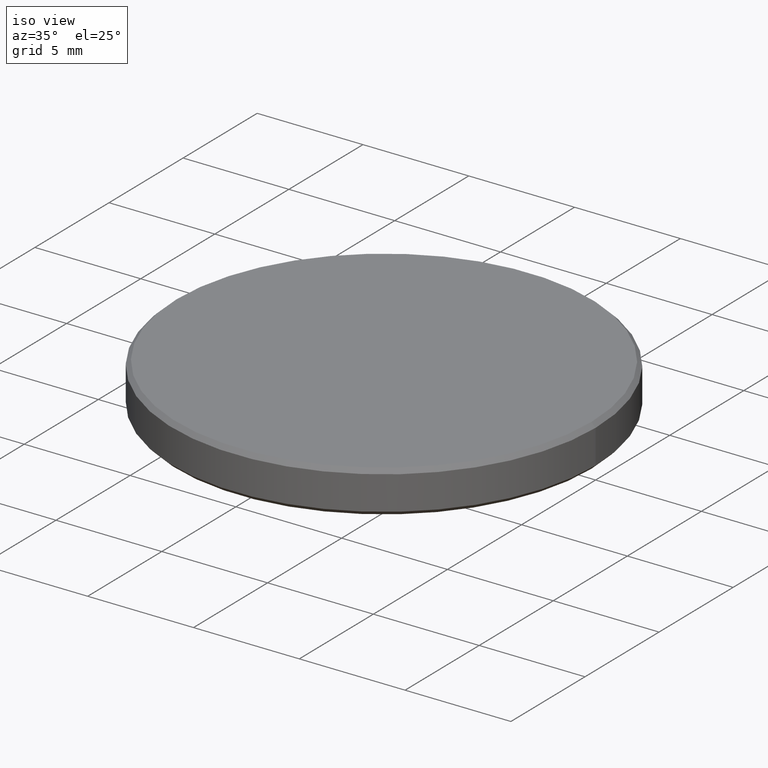
[diagram: clean part render]
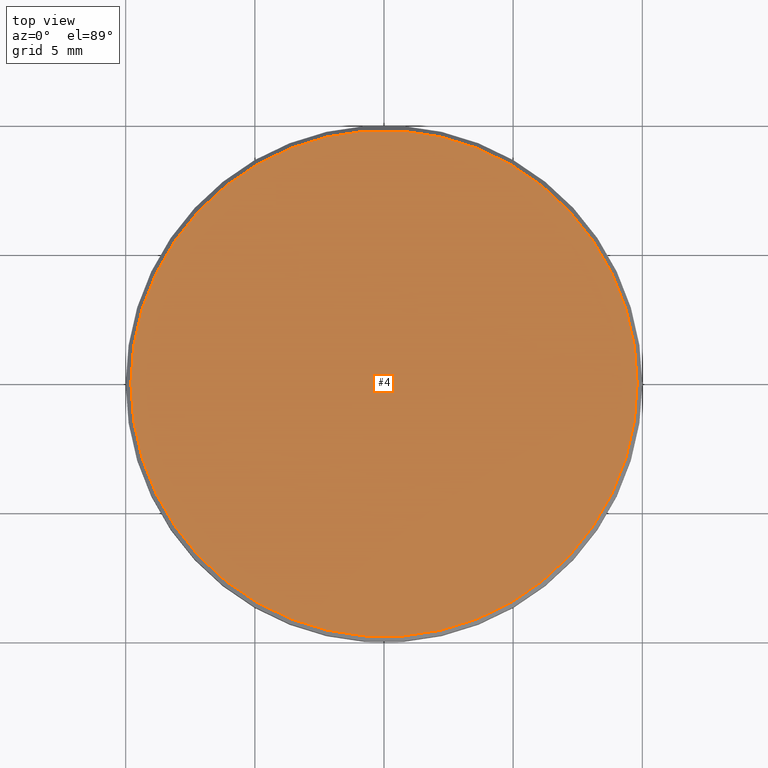
[diagram: tour spotlight — one face highlighted and labeled with its STEP entity id]
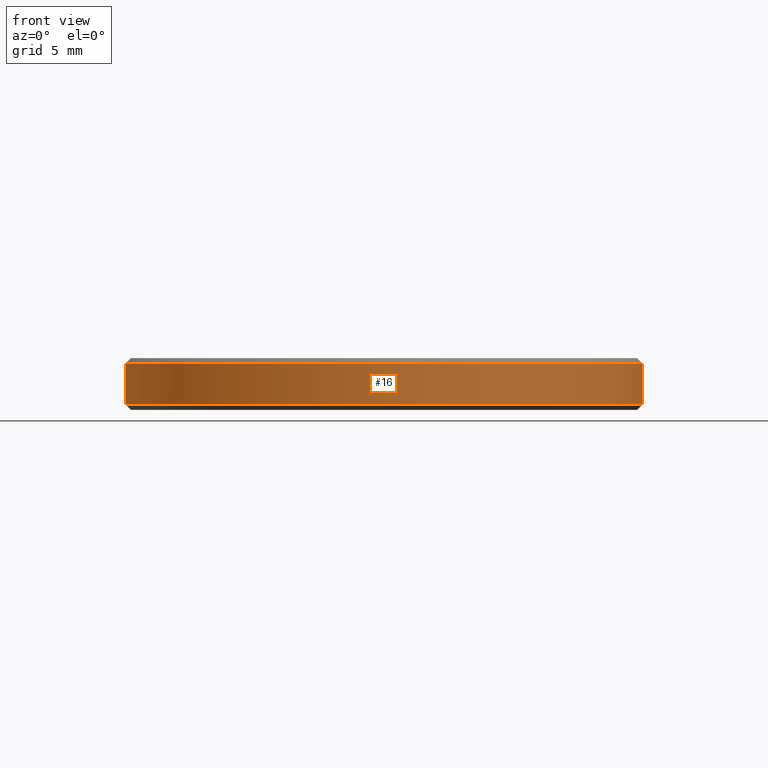
[diagram: tour spotlight — one face highlighted and labeled with its STEP entity id]
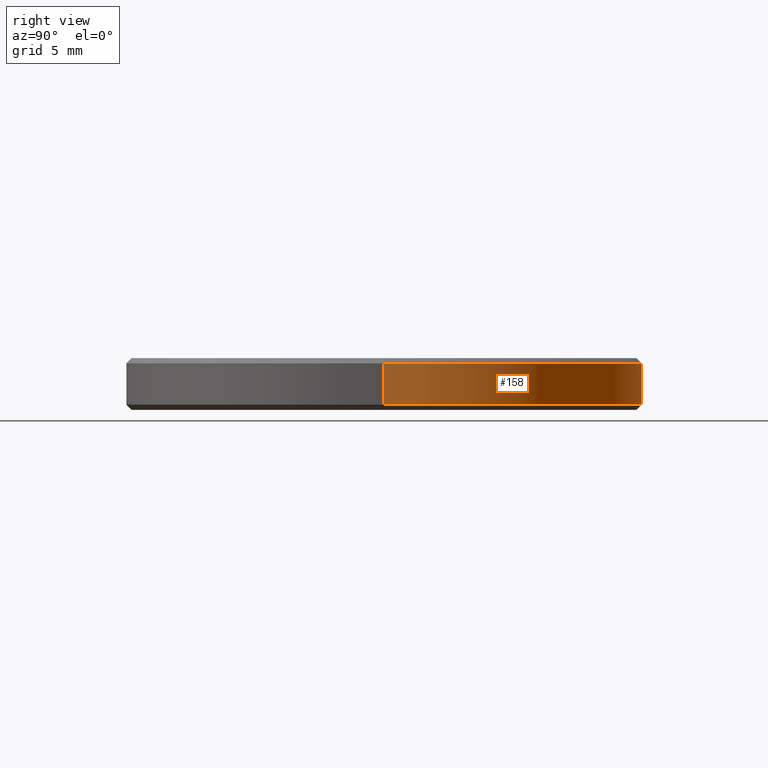
[diagram: tour spotlight — one face highlighted and labeled with its STEP entity id]
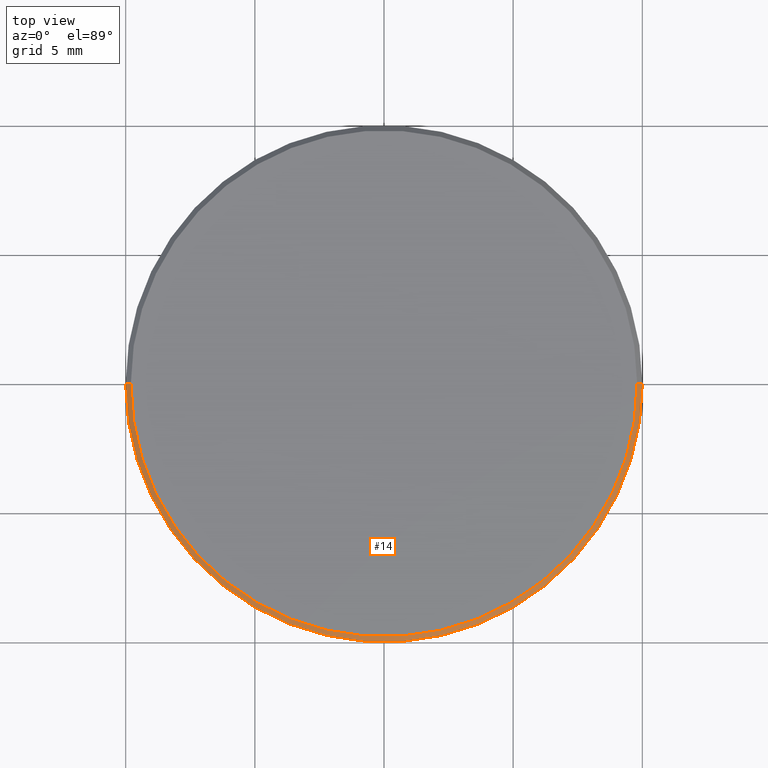
[diagram: tour spotlight — one face highlighted and labeled with its STEP entity id]
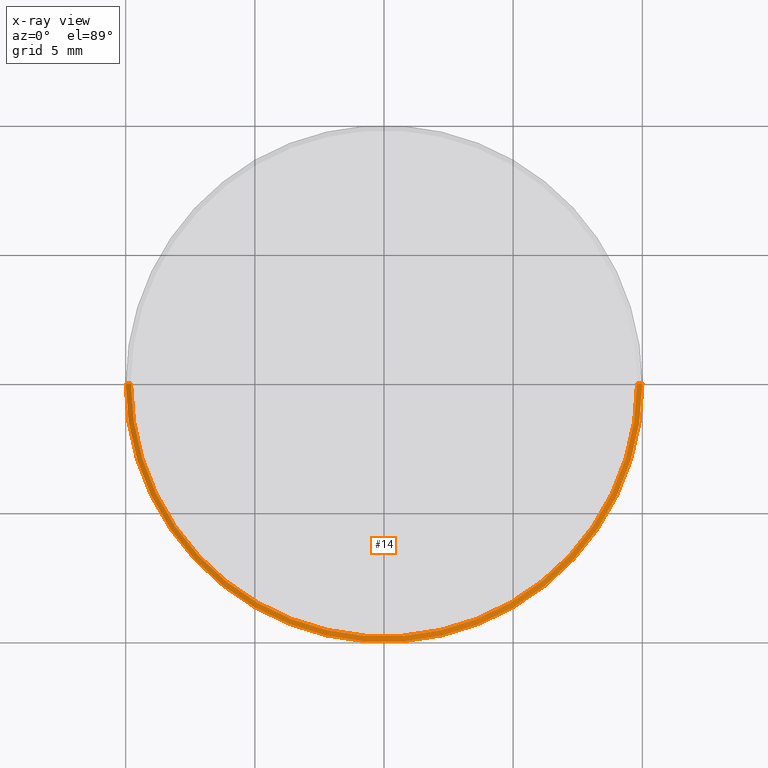
[diagram: x-ray of the same camera — body ghosted, this tour face saturated]
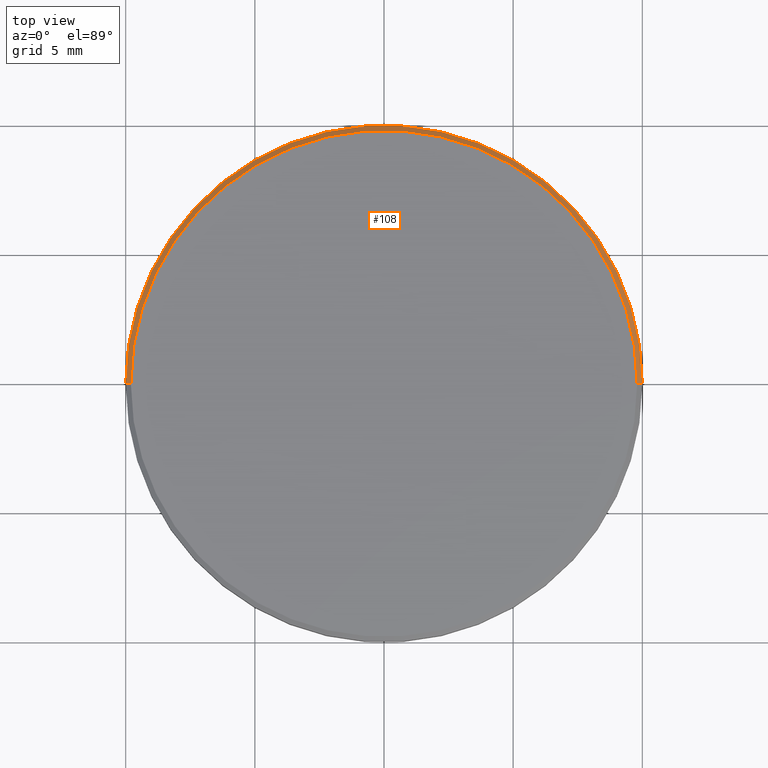
[diagram: tour spotlight — one face highlighted and labeled with its STEP entity id]
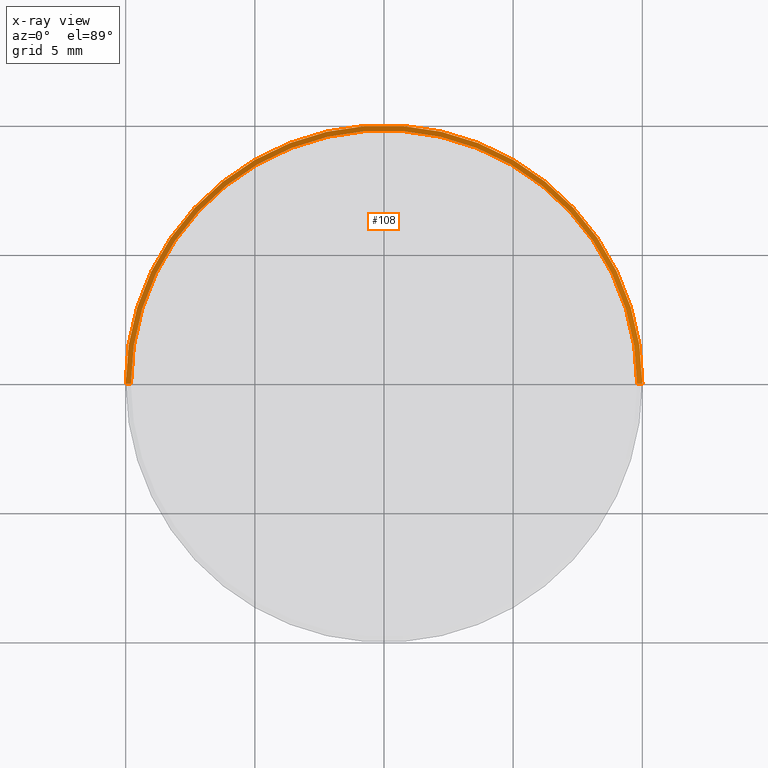
[diagram: x-ray of the same camera — body ghosted, this tour face saturated]
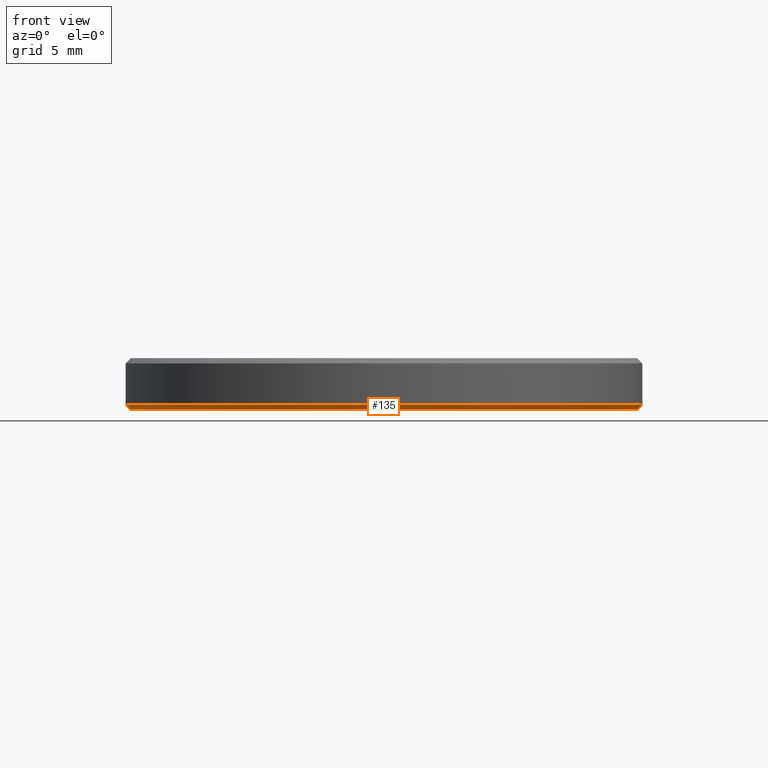
[diagram: tour spotlight — one face highlighted and labeled with its STEP entity id]
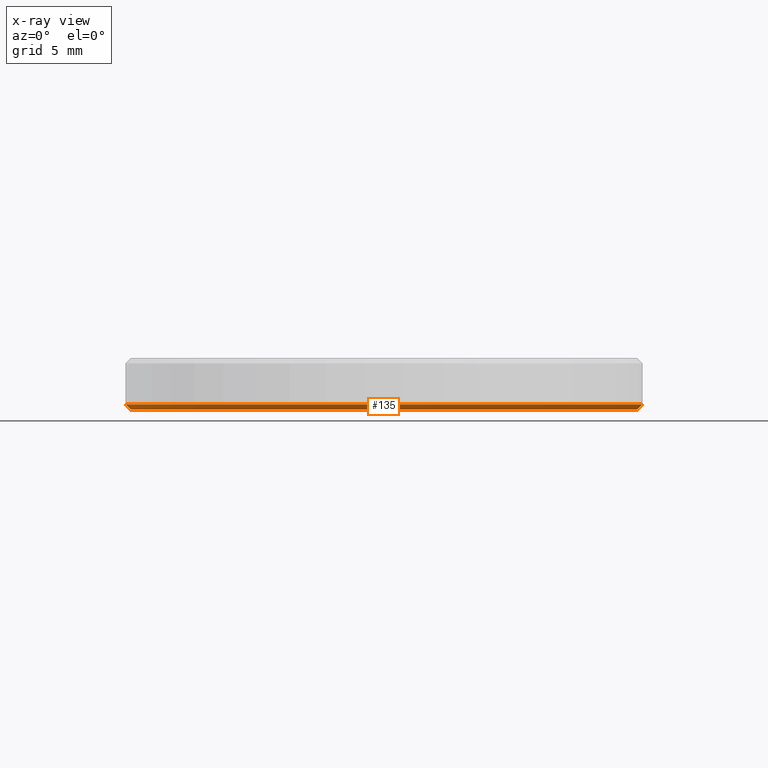
[diagram: x-ray of the same camera — body ghosted, this tour face saturated]
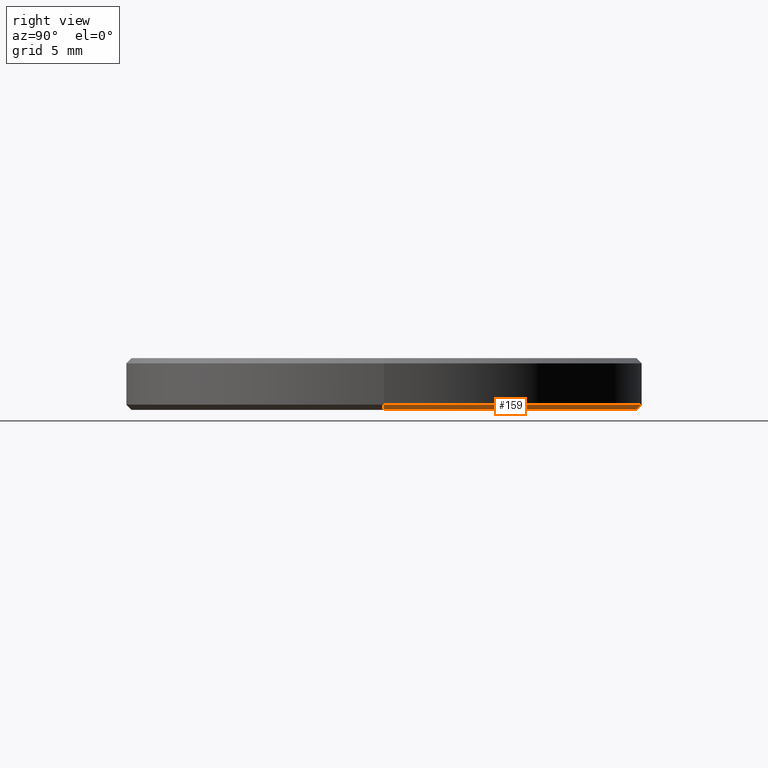
[diagram: tour spotlight — one face highlighted and labeled with its STEP entity id]
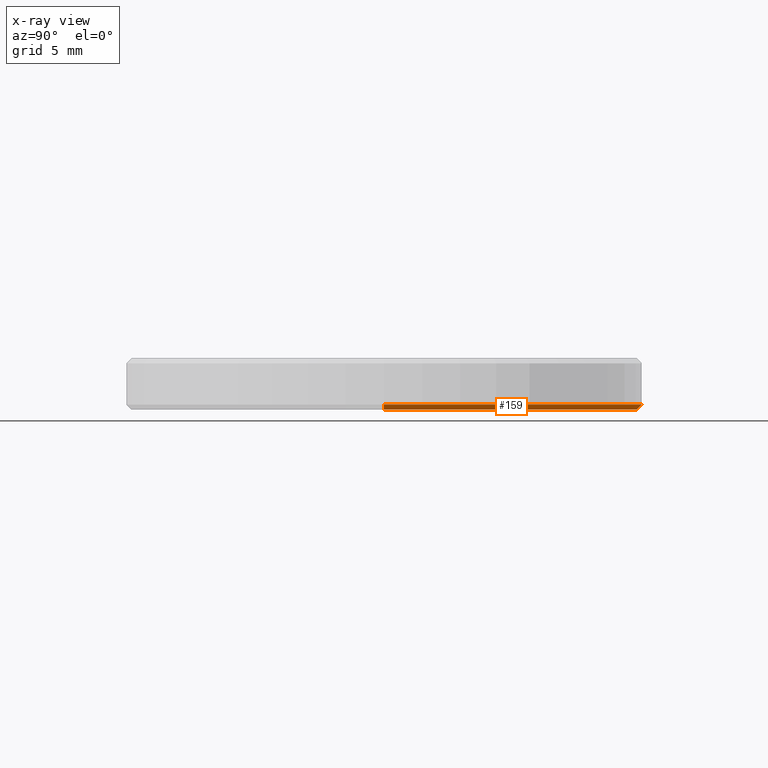
[diagram: x-ray of the same camera — body ghosted, this tour face saturated]
A machine part: a face-by-face anatomy tour. The part has 8 B-rep faces; the first image is the clean iso view, then the 7 largest visible faces are spotlighted one at a time (largest first), each with its STEP entity span.

Face 1 — top view, entity #4. In plain terms, the highlighted planar face has unit normal (0, 0, 1).
Definition (entity closure, byte-faithful):
#4 = ADVANCED_FACE ( 'NONE', ( #130 ), #52, .T. ) ;
#8 = AXIS2_PLACEMENT_3D ( 'NONE', #229, #74, #138 ) ;
#10 = CARTESIAN_POINT ( 'NONE',  ( 0.000000000000000000, 0.000000000000000000, 2.000000000000000000 ) ) ;
#11 = CARTESIAN_POINT ( 'NONE',  ( 0.000000000000000000, 0.000000000000000000, 2.000000000000000000 ) ) ;
#45 = DIRECTION ( 'NONE',  ( 0.000000000000000000, 0.000000000000000000, 1.000000000000000000 ) ) ;
#51 = CIRCLE ( 'NONE', #86, 9.799999999999993605 ) ;
#52 = PLANE ( 'NONE',  #123 ) ;
#68 = EDGE_CURVE ( 'NONE', #189, #92, #169, .T. ) ;
#74 = DIRECTION ( 'NONE',  ( 0.000000000000000000, 0.000000000000000000, 1.000000000000000000 ) ) ;
#86 = AXIS2_PLACEMENT_3D ( 'NONE', #11, #93, #141 ) ;
#90 = EDGE_LOOP ( 'NONE', ( #218, #182 ) ) ;
#92 = VERTEX_POINT ( 'NONE', #96 ) ;
#93 = DIRECTION ( 'NONE',  ( 0.000000000000000000, 0.000000000000000000, 1.000000000000000000 ) ) ;
#96 = CARTESIAN_POINT ( 'NONE',  ( 9.799999999999993605, 1.212400331155879111E-15, 2.000000000000000000 ) ) ;
#123 = AXIS2_PLACEMENT_3D ( 'NONE', #10, #45, #171 ) ;
#124 = CARTESIAN_POINT ( 'NONE',  ( -9.799999999999993605, 0.000000000000000000, 2.000000000000000000 ) ) ;
#130 = FACE_OUTER_BOUND ( 'NONE', #90, .T. ) ;
#138 = DIRECTION ( 'NONE',  ( 1.000000000000000000, 0.000000000000000000, 0.000000000000000000 ) ) ;
#141 = DIRECTION ( 'NONE',  ( 1.000000000000000000, 0.000000000000000000, 0.000000000000000000 ) ) ;
#169 = CIRCLE ( 'NONE', #8, 9.799999999999993605 ) ;
#171 = DIRECTION ( 'NONE',  ( 1.000000000000000000, 0.000000000000000000, -0.000000000000000000 ) ) ;
#182 = ORIENTED_EDGE ( 'NONE', *, *, #183, .T. ) ;
#183 = EDGE_CURVE ( 'NONE', #92, #189, #51, .T. ) ;
#189 = VERTEX_POINT ( 'NONE', #124 ) ;
#218 = ORIENTED_EDGE ( 'NONE', *, *, #68, .T. ) ;
#229 = CARTESIAN_POINT ( 'NONE',  ( 0.000000000000000000, 0.000000000000000000, 2.000000000000000000 ) ) ;

Face 2 — front view, entity #16. In plain terms, the highlighted cylindrical surface (partial cylindrical patch) has radius 10 mm, axis along (-0, -0, -1).
Definition (entity closure, byte-faithful):
#5 = LINE ( 'NONE', #6, #154 ) ;
#6 = CARTESIAN_POINT ( 'NONE',  ( -10.00000000000000000, 0.000000000000000000, 2.000000000000000000 ) ) ;
#7 = EDGE_CURVE ( 'NONE', #88, #133, #5, .T. ) ;
#12 = DIRECTION ( 'NONE',  ( 0.000000000000000000, 0.000000000000000000, -1.000000000000000000 ) ) ;
#16 = ADVANCED_FACE ( 'NONE', ( #103 ), #122, .T. ) ;
#24 = VECTOR ( 'NONE', #30, 1000.000000000000000 ) ;
#28 = LINE ( 'NONE', #71, #24 ) ;
#30 = DIRECTION ( 'NONE',  ( -0.000000000000000000, -0.000000000000000000, -1.000000000000000000 ) ) ;
#38 = ORIENTED_EDGE ( 'NONE', *, *, #7, .T. ) ;
#49 = ORIENTED_EDGE ( 'NONE', *, *, #191, .T. ) ;
#53 = CARTESIAN_POINT ( 'NONE',  ( 0.000000000000000000, 0.000000000000000000, 1.799999999999992495 ) ) ;
#59 = VERTEX_POINT ( 'NONE', #75 ) ;
#61 = EDGE_CURVE ( 'NONE', #115, #59, #28, .T. ) ;
#71 = CARTESIAN_POINT ( 'NONE',  ( 10.00000000000000000, 1.224646799147353256E-15, 2.000000000000000000 ) ) ;
#75 = CARTESIAN_POINT ( 'NONE',  ( 10.00000000000000000, 1.224646799147353256E-15, 0.2000000000000005107 ) ) ;
#76 = CIRCLE ( 'NONE', #118, 10.00000000000000000 ) ;
#78 = EDGE_CURVE ( 'NONE', #115, #88, #76, .T. ) ;
#80 = CARTESIAN_POINT ( 'NONE',  ( 0.000000000000000000, 0.000000000000000000, 0.2000000000000005107 ) ) ;
#83 = EDGE_LOOP ( 'NONE', ( #127, #168, #38, #49 ) ) ;
#88 = VERTEX_POINT ( 'NONE', #188 ) ;
#94 = CARTESIAN_POINT ( 'NONE',  ( 0.000000000000000000, 0.000000000000000000, 2.000000000000000000 ) ) ;
#103 = FACE_OUTER_BOUND ( 'NONE', #83, .T. ) ;
#109 = DIRECTION ( 'NONE',  ( 1.000000000000000000, 0.000000000000000000, 0.000000000000000000 ) ) ;
#115 = VERTEX_POINT ( 'NONE', #223 ) ;
#118 = AXIS2_PLACEMENT_3D ( 'NONE', #53, #12, #153 ) ;
#122 = CYLINDRICAL_SURFACE ( 'NONE', #221, 10.00000000000000000 ) ;
#126 = DIRECTION ( 'NONE',  ( -0.000000000000000000, -0.000000000000000000, 1.000000000000000000 ) ) ;
#127 = ORIENTED_EDGE ( 'NONE', *, *, #61, .F. ) ;
#133 = VERTEX_POINT ( 'NONE', #165 ) ;
#137 = DIRECTION ( 'NONE',  ( -0.000000000000000000, -0.000000000000000000, -1.000000000000000000 ) ) ;
#153 = DIRECTION ( 'NONE',  ( 1.000000000000000000, 0.000000000000000000, 0.000000000000000000 ) ) ;
#154 = VECTOR ( 'NONE', #137, 1000.000000000000000 ) ;
#165 = CARTESIAN_POINT ( 'NONE',  ( -10.00000000000000000, 0.000000000000000000, 0.2000000000000005107 ) ) ;
#168 = ORIENTED_EDGE ( 'NONE', *, *, #78, .T. ) ;
#174 = DIRECTION ( 'NONE',  ( -0.000000000000000000, -0.000000000000000000, -1.000000000000000000 ) ) ;
#188 = CARTESIAN_POINT ( 'NONE',  ( -10.00000000000000000, 0.000000000000000000, 1.799999999999992495 ) ) ;
#191 = EDGE_CURVE ( 'NONE', #133, #59, #211, .T. ) ;
#194 = DIRECTION ( 'NONE',  ( -1.000000000000000000, 0.000000000000000000, 0.000000000000000000 ) ) ;
#196 = AXIS2_PLACEMENT_3D ( 'NONE', #80, #126, #109 ) ;
#211 = CIRCLE ( 'NONE', #196, 10.00000000000000000 ) ;
#221 = AXIS2_PLACEMENT_3D ( 'NONE', #94, #174, #194 ) ;
#223 = CARTESIAN_POINT ( 'NONE',  ( 10.00000000000000000, 1.224646799147353256E-15, 1.799999999999992495 ) ) ;

Face 3 — right view, entity #158. In plain terms, the highlighted cylindrical surface (partial cylindrical patch) has radius 10 mm, axis along (-0, -0, -1).
Definition (entity closure, byte-faithful):
#5 = LINE ( 'NONE', #6, #154 ) ;
#6 = CARTESIAN_POINT ( 'NONE',  ( -10.00000000000000000, 0.000000000000000000, 2.000000000000000000 ) ) ;
#7 = EDGE_CURVE ( 'NONE', #88, #133, #5, .T. ) ;
#9 = CARTESIAN_POINT ( 'NONE',  ( 0.000000000000000000, 0.000000000000000000, 0.2000000000000005107 ) ) ;
#13 = AXIS2_PLACEMENT_3D ( 'NONE', #44, #190, #89 ) ;
#24 = VECTOR ( 'NONE', #30, 1000.000000000000000 ) ;
#28 = LINE ( 'NONE', #71, #24 ) ;
#30 = DIRECTION ( 'NONE',  ( -0.000000000000000000, -0.000000000000000000, -1.000000000000000000 ) ) ;
#44 = CARTESIAN_POINT ( 'NONE',  ( 0.000000000000000000, 0.000000000000000000, 2.000000000000000000 ) ) ;
#48 = DIRECTION ( 'NONE',  ( 1.000000000000000000, 0.000000000000000000, 0.000000000000000000 ) ) ;
#55 = EDGE_CURVE ( 'NONE', #88, #115, #72, .T. ) ;
#59 = VERTEX_POINT ( 'NONE', #75 ) ;
#61 = EDGE_CURVE ( 'NONE', #115, #59, #28, .T. ) ;
#63 = ORIENTED_EDGE ( 'NONE', *, *, #61, .T. ) ;
#65 = FACE_OUTER_BOUND ( 'NONE', #197, .T. ) ;
#71 = CARTESIAN_POINT ( 'NONE',  ( 10.00000000000000000, 1.224646799147353256E-15, 2.000000000000000000 ) ) ;
#72 = CIRCLE ( 'NONE', #149, 10.00000000000000000 ) ;
#75 = CARTESIAN_POINT ( 'NONE',  ( 10.00000000000000000, 1.224646799147353256E-15, 0.2000000000000005107 ) ) ;
#79 = ORIENTED_EDGE ( 'NONE', *, *, #177, .T. ) ;
#88 = VERTEX_POINT ( 'NONE', #188 ) ;
#89 = DIRECTION ( 'NONE',  ( -1.000000000000000000, 0.000000000000000000, 0.000000000000000000 ) ) ;
#114 = ORIENTED_EDGE ( 'NONE', *, *, #55, .T. ) ;
#115 = VERTEX_POINT ( 'NONE', #223 ) ;
#121 = CIRCLE ( 'NONE', #140, 10.00000000000000000 ) ;
#128 = CYLINDRICAL_SURFACE ( 'NONE', #13, 10.00000000000000000 ) ;
#133 = VERTEX_POINT ( 'NONE', #165 ) ;
#137 = DIRECTION ( 'NONE',  ( -0.000000000000000000, -0.000000000000000000, -1.000000000000000000 ) ) ;
#140 = AXIS2_PLACEMENT_3D ( 'NONE', #9, #156, #228 ) ;
#146 = ORIENTED_EDGE ( 'NONE', *, *, #7, .F. ) ;
#149 = AXIS2_PLACEMENT_3D ( 'NONE', #172, #193, #48 ) ;
#154 = VECTOR ( 'NONE', #137, 1000.000000000000000 ) ;
#156 = DIRECTION ( 'NONE',  ( -0.000000000000000000, -0.000000000000000000, 1.000000000000000000 ) ) ;
#158 = ADVANCED_FACE ( 'NONE', ( #65 ), #128, .T. ) ;
#165 = CARTESIAN_POINT ( 'NONE',  ( -10.00000000000000000, 0.000000000000000000, 0.2000000000000005107 ) ) ;
#172 = CARTESIAN_POINT ( 'NONE',  ( 0.000000000000000000, 0.000000000000000000, 1.799999999999992495 ) ) ;
#177 = EDGE_CURVE ( 'NONE', #59, #133, #121, .T. ) ;
#188 = CARTESIAN_POINT ( 'NONE',  ( -10.00000000000000000, 0.000000000000000000, 1.799999999999992495 ) ) ;
#190 = DIRECTION ( 'NONE',  ( -0.000000000000000000, -0.000000000000000000, -1.000000000000000000 ) ) ;
#193 = DIRECTION ( 'NONE',  ( 0.000000000000000000, 0.000000000000000000, -1.000000000000000000 ) ) ;
#197 = EDGE_LOOP ( 'NONE', ( #114, #63, #79, #146 ) ) ;
#223 = CARTESIAN_POINT ( 'NONE',  ( 10.00000000000000000, 1.224646799147353256E-15, 1.799999999999992495 ) ) ;
#228 = DIRECTION ( 'NONE',  ( 1.000000000000000000, 0.000000000000000000, 0.000000000000000000 ) ) ;

Face 4 — top view, entity #14. An x-ray twin of the same camera follows (body ghosted, this face saturated) — the face is partly hidden behind the body. In plain terms, the highlighted conical surface has half-angle 45 deg.
Definition (entity closure, byte-faithful):
#8 = AXIS2_PLACEMENT_3D ( 'NONE', #229, #74, #138 ) ;
#12 = DIRECTION ( 'NONE',  ( 0.000000000000000000, 0.000000000000000000, -1.000000000000000000 ) ) ;
#14 = ADVANCED_FACE ( 'NONE', ( #91 ), #33, .T. ) ;
#26 = ORIENTED_EDGE ( 'NONE', *, *, #31, .T. ) ;
#31 = EDGE_CURVE ( 'NONE', #189, #88, #132, .T. ) ;
#33 = CONICAL_SURFACE ( 'NONE', #164, 9.799999999999993605, 0.7853981633974482790 ) ;
#41 = ORIENTED_EDGE ( 'NONE', *, *, #78, .F. ) ;
#53 = CARTESIAN_POINT ( 'NONE',  ( 0.000000000000000000, 0.000000000000000000, 1.799999999999992495 ) ) ;
#68 = EDGE_CURVE ( 'NONE', #189, #92, #169, .T. ) ;
#74 = DIRECTION ( 'NONE',  ( 0.000000000000000000, 0.000000000000000000, 1.000000000000000000 ) ) ;
#76 = CIRCLE ( 'NONE', #118, 10.00000000000000000 ) ;
#78 = EDGE_CURVE ( 'NONE', #115, #88, #76, .T. ) ;
#84 = ORIENTED_EDGE ( 'NONE', *, *, #104, .F. ) ;
#88 = VERTEX_POINT ( 'NONE', #188 ) ;
#91 = FACE_OUTER_BOUND ( 'NONE', #102, .T. ) ;
#92 = VERTEX_POINT ( 'NONE', #96 ) ;
#96 = CARTESIAN_POINT ( 'NONE',  ( 9.799999999999993605, 1.212400331155879111E-15, 2.000000000000000000 ) ) ;
#102 = EDGE_LOOP ( 'NONE', ( #84, #225, #26, #41 ) ) ;
#104 = EDGE_CURVE ( 'NONE', #92, #115, #201, .T. ) ;
#115 = VERTEX_POINT ( 'NONE', #223 ) ;
#118 = AXIS2_PLACEMENT_3D ( 'NONE', #53, #12, #153 ) ;
#120 = VECTOR ( 'NONE', #212, 1000.000000000000114 ) ;
#124 = CARTESIAN_POINT ( 'NONE',  ( -9.799999999999993605, 0.000000000000000000, 2.000000000000000000 ) ) ;
#132 = LINE ( 'NONE', #136, #120 ) ;
#136 = CARTESIAN_POINT ( 'NONE',  ( -9.799999999999993605, 0.000000000000000000, 2.000000000000000000 ) ) ;
#138 = DIRECTION ( 'NONE',  ( 1.000000000000000000, 0.000000000000000000, 0.000000000000000000 ) ) ;
#153 = DIRECTION ( 'NONE',  ( 1.000000000000000000, 0.000000000000000000, 0.000000000000000000 ) ) ;
#157 = DIRECTION ( 'NONE',  ( -1.000000000000000000, 0.000000000000000000, 0.000000000000000000 ) ) ;
#164 = AXIS2_PLACEMENT_3D ( 'NONE', #176, #224, #157 ) ;
#169 = CIRCLE ( 'NONE', #8, 9.799999999999993605 ) ;
#176 = CARTESIAN_POINT ( 'NONE',  ( 0.000000000000000000, 0.000000000000000000, 2.000000000000000000 ) ) ;
#188 = CARTESIAN_POINT ( 'NONE',  ( -10.00000000000000000, 0.000000000000000000, 1.799999999999992495 ) ) ;
#189 = VERTEX_POINT ( 'NONE', #124 ) ;
#201 = LINE ( 'NONE', #205, #215 ) ;
#205 = CARTESIAN_POINT ( 'NONE',  ( 9.799999999999993605, 1.200153863164405359E-15, 2.000000000000000000 ) ) ;
#212 = DIRECTION ( 'NONE',  ( -0.7071067811865474617, 0.000000000000000000, -0.7071067811865474617 ) ) ;
#215 = VECTOR ( 'NONE', #240, 1000.000000000000114 ) ;
#223 = CARTESIAN_POINT ( 'NONE',  ( 10.00000000000000000, 1.224646799147353256E-15, 1.799999999999992495 ) ) ;
#224 = DIRECTION ( 'NONE',  ( 0.000000000000000000, 0.000000000000000000, -1.000000000000000000 ) ) ;
#225 = ORIENTED_EDGE ( 'NONE', *, *, #68, .F. ) ;
#229 = CARTESIAN_POINT ( 'NONE',  ( 0.000000000000000000, 0.000000000000000000, 2.000000000000000000 ) ) ;
#240 = DIRECTION ( 'NONE',  ( 0.7071067811865474617, 8.659560562354932858E-17, -0.7071067811865474617 ) ) ;

Face 5 — top view, entity #108. An x-ray twin of the same camera follows (body ghosted, this face saturated) — the face is partly hidden behind the body. In plain terms, the highlighted conical surface has half-angle 45 deg.
Definition (entity closure, byte-faithful):
#11 = CARTESIAN_POINT ( 'NONE',  ( 0.000000000000000000, 0.000000000000000000, 2.000000000000000000 ) ) ;
#19 = ORIENTED_EDGE ( 'NONE', *, *, #104, .T. ) ;
#31 = EDGE_CURVE ( 'NONE', #189, #88, #132, .T. ) ;
#34 = AXIS2_PLACEMENT_3D ( 'NONE', #42, #113, #116 ) ;
#42 = CARTESIAN_POINT ( 'NONE',  ( 0.000000000000000000, 0.000000000000000000, 2.000000000000000000 ) ) ;
#47 = CONICAL_SURFACE ( 'NONE', #34, 9.799999999999993605, 0.7853981633974482790 ) ;
#48 = DIRECTION ( 'NONE',  ( 1.000000000000000000, 0.000000000000000000, 0.000000000000000000 ) ) ;
#51 = CIRCLE ( 'NONE', #86, 9.799999999999993605 ) ;
#55 = EDGE_CURVE ( 'NONE', #88, #115, #72, .T. ) ;
#66 = EDGE_LOOP ( 'NONE', ( #202, #19, #125, #185 ) ) ;
#72 = CIRCLE ( 'NONE', #149, 10.00000000000000000 ) ;
#86 = AXIS2_PLACEMENT_3D ( 'NONE', #11, #93, #141 ) ;
#88 = VERTEX_POINT ( 'NONE', #188 ) ;
#92 = VERTEX_POINT ( 'NONE', #96 ) ;
#93 = DIRECTION ( 'NONE',  ( 0.000000000000000000, 0.000000000000000000, 1.000000000000000000 ) ) ;
#96 = CARTESIAN_POINT ( 'NONE',  ( 9.799999999999993605, 1.212400331155879111E-15, 2.000000000000000000 ) ) ;
#104 = EDGE_CURVE ( 'NONE', #92, #115, #201, .T. ) ;
#108 = ADVANCED_FACE ( 'NONE', ( #204 ), #47, .T. ) ;
#113 = DIRECTION ( 'NONE',  ( 0.000000000000000000, 0.000000000000000000, -1.000000000000000000 ) ) ;
#115 = VERTEX_POINT ( 'NONE', #223 ) ;
#116 = DIRECTION ( 'NONE',  ( -1.000000000000000000, 0.000000000000000000, 0.000000000000000000 ) ) ;
#120 = VECTOR ( 'NONE', #212, 1000.000000000000114 ) ;
#124 = CARTESIAN_POINT ( 'NONE',  ( -9.799999999999993605, 0.000000000000000000, 2.000000000000000000 ) ) ;
#125 = ORIENTED_EDGE ( 'NONE', *, *, #55, .F. ) ;
#132 = LINE ( 'NONE', #136, #120 ) ;
#136 = CARTESIAN_POINT ( 'NONE',  ( -9.799999999999993605, 0.000000000000000000, 2.000000000000000000 ) ) ;
#141 = DIRECTION ( 'NONE',  ( 1.000000000000000000, 0.000000000000000000, 0.000000000000000000 ) ) ;
#149 = AXIS2_PLACEMENT_3D ( 'NONE', #172, #193, #48 ) ;
#172 = CARTESIAN_POINT ( 'NONE',  ( 0.000000000000000000, 0.000000000000000000, 1.799999999999992495 ) ) ;
#183 = EDGE_CURVE ( 'NONE', #92, #189, #51, .T. ) ;
#185 = ORIENTED_EDGE ( 'NONE', *, *, #31, .F. ) ;
#188 = CARTESIAN_POINT ( 'NONE',  ( -10.00000000000000000, 0.000000000000000000, 1.799999999999992495 ) ) ;
#189 = VERTEX_POINT ( 'NONE', #124 ) ;
#193 = DIRECTION ( 'NONE',  ( 0.000000000000000000, 0.000000000000000000, -1.000000000000000000 ) ) ;
#201 = LINE ( 'NONE', #205, #215 ) ;
#202 = ORIENTED_EDGE ( 'NONE', *, *, #183, .F. ) ;
#204 = FACE_OUTER_BOUND ( 'NONE', #66, .T. ) ;
#205 = CARTESIAN_POINT ( 'NONE',  ( 9.799999999999993605, 1.200153863164405359E-15, 2.000000000000000000 ) ) ;
#212 = DIRECTION ( 'NONE',  ( -0.7071067811865474617, 0.000000000000000000, -0.7071067811865474617 ) ) ;
#215 = VECTOR ( 'NONE', #240, 1000.000000000000114 ) ;
#223 = CARTESIAN_POINT ( 'NONE',  ( 10.00000000000000000, 1.224646799147353256E-15, 1.799999999999992495 ) ) ;
#240 = DIRECTION ( 'NONE',  ( 0.7071067811865474617, 8.659560562354932858E-17, -0.7071067811865474617 ) ) ;

Face 6 — front view, entity #135. An x-ray twin of the same camera follows (body ghosted, this face saturated) — the face is partly hidden behind the body. In plain terms, the highlighted conical surface has half-angle 45 deg.
Definition (entity closure, byte-faithful):
#1 = ORIENTED_EDGE ( 'NONE', *, *, #143, .T. ) ;
#18 = CARTESIAN_POINT ( 'NONE',  ( -9.799999999999998934, 1.212400331155879505E-15, 0.000000000000000000 ) ) ;
#20 = LINE ( 'NONE', #97, #95 ) ;
#21 = EDGE_LOOP ( 'NONE', ( #62, #179, #1, #184 ) ) ;
#23 = DIRECTION ( 'NONE',  ( 1.000000000000000000, 0.000000000000000000, 0.000000000000000000 ) ) ;
#27 = CONICAL_SURFACE ( 'NONE', #60, 10.00000000000000000, 0.7853981633974482790 ) ;
#57 = LINE ( 'NONE', #161, #195 ) ;
#59 = VERTEX_POINT ( 'NONE', #75 ) ;
#60 = AXIS2_PLACEMENT_3D ( 'NONE', #217, #117, #23 ) ;
#62 = ORIENTED_EDGE ( 'NONE', *, *, #98, .F. ) ;
#75 = CARTESIAN_POINT ( 'NONE',  ( 10.00000000000000000, 1.224646799147353256E-15, 0.2000000000000005107 ) ) ;
#80 = CARTESIAN_POINT ( 'NONE',  ( 0.000000000000000000, 0.000000000000000000, 0.2000000000000005107 ) ) ;
#82 = AXIS2_PLACEMENT_3D ( 'NONE', #147, #151, #99 ) ;
#95 = VECTOR ( 'NONE', #163, 1000.000000000000114 ) ;
#97 = CARTESIAN_POINT ( 'NONE',  ( 10.00000000000000000, 0.000000000000000000, 0.2000000000000005107 ) ) ;
#98 = EDGE_CURVE ( 'NONE', #199, #133, #57, .T. ) ;
#99 = DIRECTION ( 'NONE',  ( 1.000000000000000000, 0.000000000000000000, 0.000000000000000000 ) ) ;
#101 = EDGE_CURVE ( 'NONE', #129, #199, #231, .T. ) ;
#109 = DIRECTION ( 'NONE',  ( 1.000000000000000000, 0.000000000000000000, 0.000000000000000000 ) ) ;
#117 = DIRECTION ( 'NONE',  ( -0.000000000000000000, -0.000000000000000000, 1.000000000000000000 ) ) ;
#126 = DIRECTION ( 'NONE',  ( -0.000000000000000000, -0.000000000000000000, 1.000000000000000000 ) ) ;
#129 = VERTEX_POINT ( 'NONE', #237 ) ;
#131 = FACE_OUTER_BOUND ( 'NONE', #21, .T. ) ;
#133 = VERTEX_POINT ( 'NONE', #165 ) ;
#135 = ADVANCED_FACE ( 'NONE', ( #131 ), #27, .T. ) ;
#143 = EDGE_CURVE ( 'NONE', #129, #59, #20, .T. ) ;
#147 = CARTESIAN_POINT ( 'NONE',  ( 0.000000000000000000, 0.000000000000000000, 0.000000000000000000 ) ) ;
#151 = DIRECTION ( 'NONE',  ( -0.000000000000000000, -0.000000000000000000, -1.000000000000000000 ) ) ;
#161 = CARTESIAN_POINT ( 'NONE',  ( -10.00000000000000000, 1.224646799147353256E-15, 0.2000000000000005107 ) ) ;
#163 = DIRECTION ( 'NONE',  ( 0.7071067811865474617, 0.000000000000000000, 0.7071067811865474617 ) ) ;
#165 = CARTESIAN_POINT ( 'NONE',  ( -10.00000000000000000, 0.000000000000000000, 0.2000000000000005107 ) ) ;
#179 = ORIENTED_EDGE ( 'NONE', *, *, #101, .F. ) ;
#184 = ORIENTED_EDGE ( 'NONE', *, *, #191, .F. ) ;
#191 = EDGE_CURVE ( 'NONE', #133, #59, #211, .T. ) ;
#195 = VECTOR ( 'NONE', #235, 1000.000000000000114 ) ;
#196 = AXIS2_PLACEMENT_3D ( 'NONE', #80, #126, #109 ) ;
#199 = VERTEX_POINT ( 'NONE', #18 ) ;
#211 = CIRCLE ( 'NONE', #196, 10.00000000000000000 ) ;
#217 = CARTESIAN_POINT ( 'NONE',  ( 0.000000000000000000, 0.000000000000000000, 0.2000000000000005107 ) ) ;
#231 = CIRCLE ( 'NONE', #82, 9.799999999999998934 ) ;
#235 = DIRECTION ( 'NONE',  ( -0.7071067811865474617, 8.659560562354932858E-17, 0.7071067811865474617 ) ) ;
#237 = CARTESIAN_POINT ( 'NONE',  ( 9.799999999999998934, 0.000000000000000000, 0.000000000000000000 ) ) ;

Face 7 — right view, entity #159. An x-ray twin of the same camera follows (body ghosted, this face saturated) — the face is partly hidden behind the body. In plain terms, the highlighted conical surface has half-angle 45 deg.
Definition (entity closure, byte-faithful):
#3 = CONICAL_SURFACE ( 'NONE', #17, 10.00000000000000000, 0.7853981633974482790 ) ;
#9 = CARTESIAN_POINT ( 'NONE',  ( 0.000000000000000000, 0.000000000000000000, 0.2000000000000005107 ) ) ;
#17 = AXIS2_PLACEMENT_3D ( 'NONE', #119, #192, #173 ) ;
#18 = CARTESIAN_POINT ( 'NONE',  ( -9.799999999999998934, 1.212400331155879505E-15, 0.000000000000000000 ) ) ;
#20 = LINE ( 'NONE', #97, #95 ) ;
#25 = DIRECTION ( 'NONE',  ( -0.000000000000000000, -0.000000000000000000, -1.000000000000000000 ) ) ;
#37 = AXIS2_PLACEMENT_3D ( 'NONE', #219, #25, #81 ) ;
#57 = LINE ( 'NONE', #161, #195 ) ;
#59 = VERTEX_POINT ( 'NONE', #75 ) ;
#75 = CARTESIAN_POINT ( 'NONE',  ( 10.00000000000000000, 1.224646799147353256E-15, 0.2000000000000005107 ) ) ;
#81 = DIRECTION ( 'NONE',  ( 1.000000000000000000, 0.000000000000000000, 0.000000000000000000 ) ) ;
#87 = ORIENTED_EDGE ( 'NONE', *, *, #143, .F. ) ;
#95 = VECTOR ( 'NONE', #163, 1000.000000000000114 ) ;
#97 = CARTESIAN_POINT ( 'NONE',  ( 10.00000000000000000, 0.000000000000000000, 0.2000000000000005107 ) ) ;
#98 = EDGE_CURVE ( 'NONE', #199, #133, #57, .T. ) ;
#112 = ORIENTED_EDGE ( 'NONE', *, *, #177, .F. ) ;
#119 = CARTESIAN_POINT ( 'NONE',  ( 0.000000000000000000, 0.000000000000000000, 0.2000000000000005107 ) ) ;
#121 = CIRCLE ( 'NONE', #140, 10.00000000000000000 ) ;
#129 = VERTEX_POINT ( 'NONE', #237 ) ;
#133 = VERTEX_POINT ( 'NONE', #165 ) ;
#140 = AXIS2_PLACEMENT_3D ( 'NONE', #9, #156, #228 ) ;
#143 = EDGE_CURVE ( 'NONE', #129, #59, #20, .T. ) ;
#150 = EDGE_CURVE ( 'NONE', #199, #129, #238, .T. ) ;
#152 = ORIENTED_EDGE ( 'NONE', *, *, #98, .T. ) ;
#156 = DIRECTION ( 'NONE',  ( -0.000000000000000000, -0.000000000000000000, 1.000000000000000000 ) ) ;
#159 = ADVANCED_FACE ( 'NONE', ( #175 ), #3, .T. ) ;
#161 = CARTESIAN_POINT ( 'NONE',  ( -10.00000000000000000, 1.224646799147353256E-15, 0.2000000000000005107 ) ) ;
#163 = DIRECTION ( 'NONE',  ( 0.7071067811865474617, 0.000000000000000000, 0.7071067811865474617 ) ) ;
#165 = CARTESIAN_POINT ( 'NONE',  ( -10.00000000000000000, 0.000000000000000000, 0.2000000000000005107 ) ) ;
#173 = DIRECTION ( 'NONE',  ( 1.000000000000000000, 0.000000000000000000, 0.000000000000000000 ) ) ;
#175 = FACE_OUTER_BOUND ( 'NONE', #236, .T. ) ;
#177 = EDGE_CURVE ( 'NONE', #59, #133, #121, .T. ) ;
#192 = DIRECTION ( 'NONE',  ( -0.000000000000000000, -0.000000000000000000, 1.000000000000000000 ) ) ;
#195 = VECTOR ( 'NONE', #235, 1000.000000000000114 ) ;
#199 = VERTEX_POINT ( 'NONE', #18 ) ;
#219 = CARTESIAN_POINT ( 'NONE',  ( 0.000000000000000000, 0.000000000000000000, 0.000000000000000000 ) ) ;
#220 = ORIENTED_EDGE ( 'NONE', *, *, #150, .F. ) ;
#228 = DIRECTION ( 'NONE',  ( 1.000000000000000000, 0.000000000000000000, 0.000000000000000000 ) ) ;
#235 = DIRECTION ( 'NONE',  ( -0.7071067811865474617, 8.659560562354932858E-17, 0.7071067811865474617 ) ) ;
#236 = EDGE_LOOP ( 'NONE', ( #220, #152, #112, #87 ) ) ;
#237 = CARTESIAN_POINT ( 'NONE',  ( 9.799999999999998934, 0.000000000000000000, 0.000000000000000000 ) ) ;
#238 = CIRCLE ( 'NONE', #37, 9.799999999999998934 ) ;